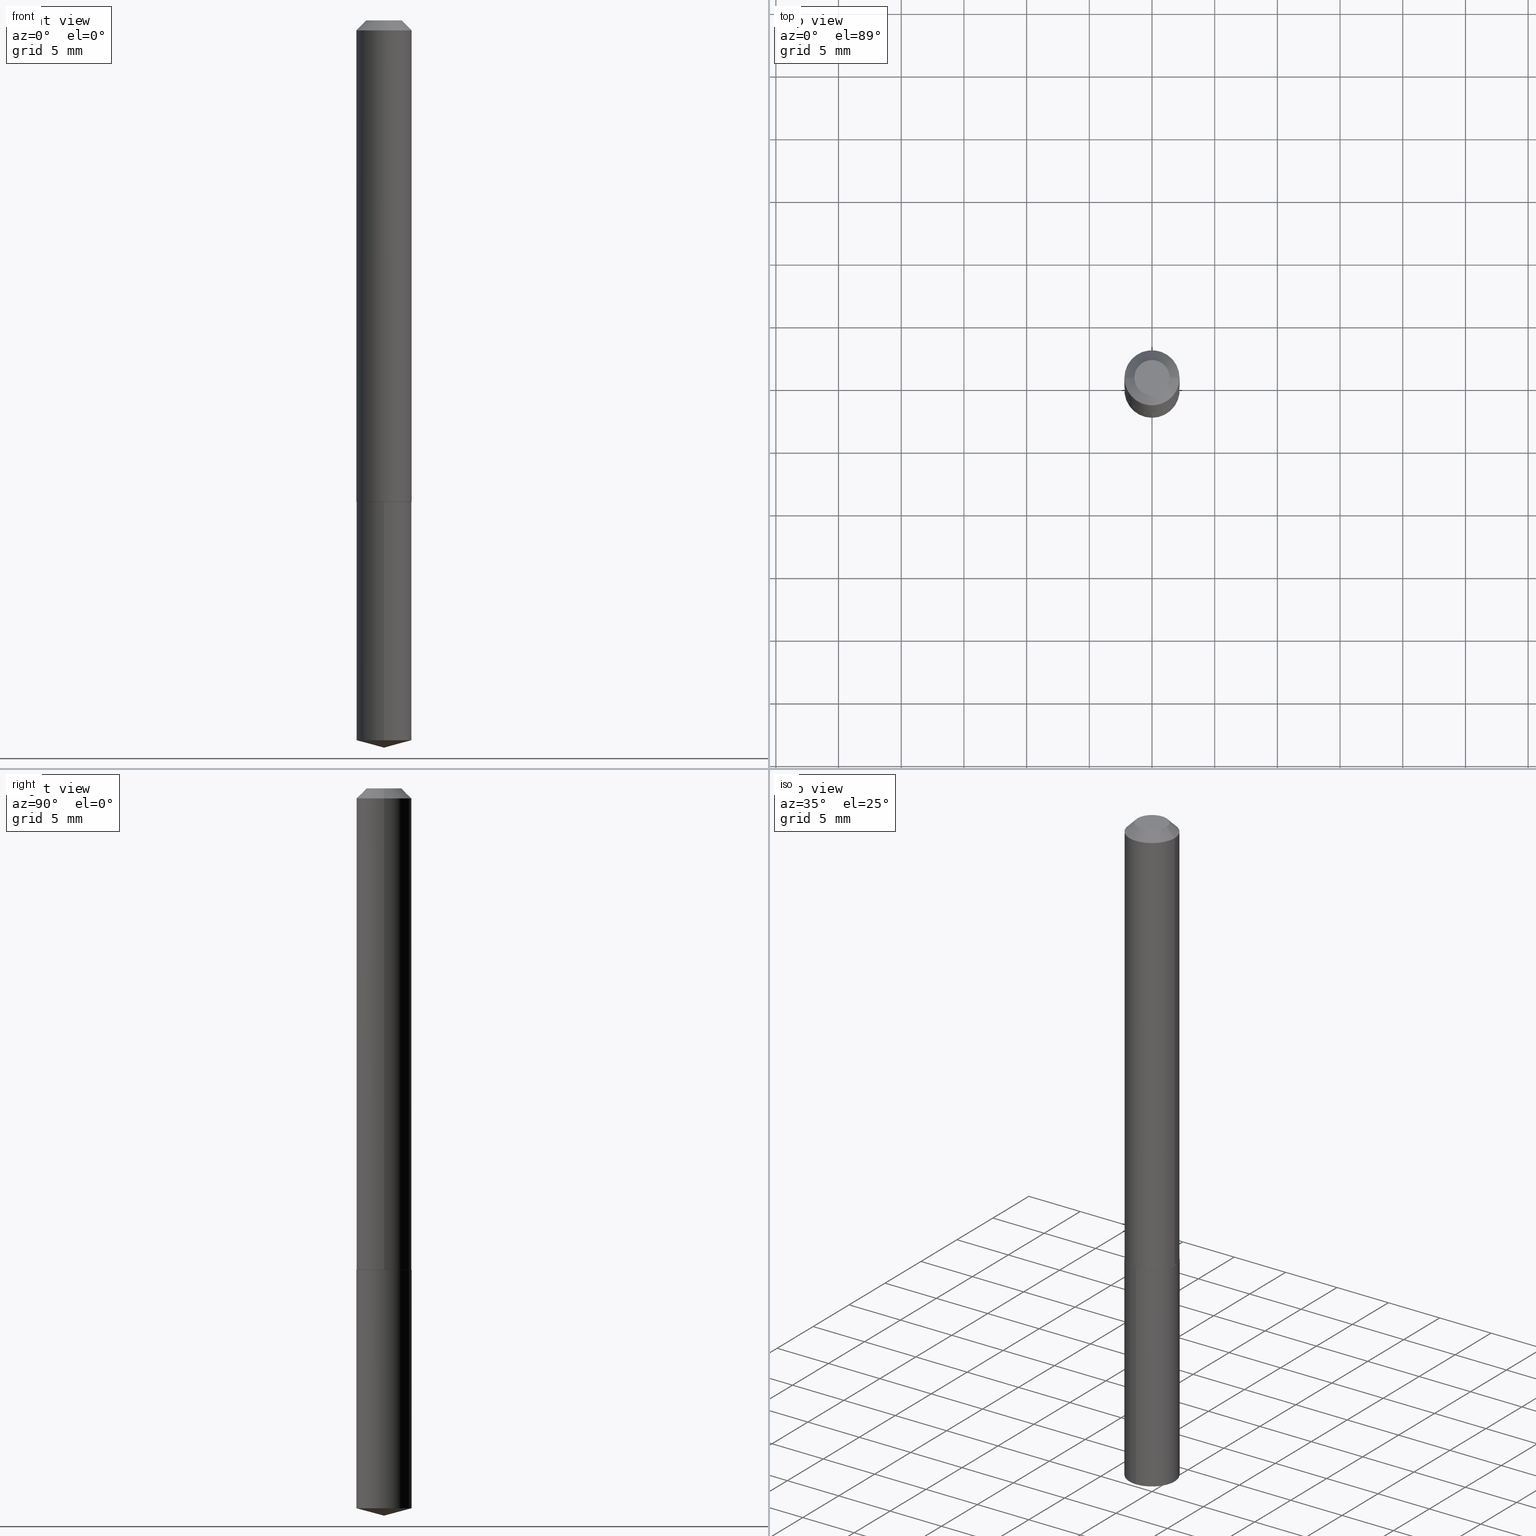
[diagram: canonical four-view strip — front | top / right | iso, engineering-drawing reading convention]
A machine part, canonical four-view strip (front | top / right | iso — engineering-drawing reading convention). The complete STEP part file that produces these views, byte-faithful:
ISO-10303-21;
HEADER;
FILE_DESCRIPTION (( 'STEP AP203' ),
    '1' );
FILE_NAME ('68979.STEP',
    '2024-04-23T14:01:39',
    ( '' ),
    ( '' ),
    'SwSTEP 2.0',
    'SolidWorks 2023',
    '' );
FILE_SCHEMA (( 'CONFIG_CONTROL_DESIGN' ));
ENDSEC;

DATA;
#1 = SECURITY_CLASSIFICATION_LEVEL ( 'unclassified' ) ;
#2 = CARTESIAN_POINT ( 'NONE',  ( 0.08659999999999998255, -7.032279184458636221E-16, -0.03125000000000021511 ) ) ;
#3 = COORDINATED_UNIVERSAL_TIME_OFFSET ( 5, 0, .BEHIND. ) ;
#4 = EDGE_CURVE ( 'NONE', #199, #148, #298, .T. ) ;
#5 = CONICAL_SURFACE ( 'NONE', #224, 0.08659999999999998255, 0.7853981633974449483 ) ;
#6 = CARTESIAN_POINT ( 'NONE',  ( 0.08610000000000034293, -5.879654574611857522E-15, -1.511800000000000033 ) ) ;
#7 = ORIENTED_EDGE ( 'NONE', *, *, #170, .T. ) ;
#8 = CARTESIAN_POINT ( 'NONE',  ( -6.047245678875748166E-16, -0.08660000000000783738, -2.260295599935465027 ) ) ;
#9 = AXIS2_PLACEMENT_3D ( 'NONE', #228, #24, #145 ) ;
#10 = FACE_OUTER_BOUND ( 'NONE', #85, .T. ) ;
#11 = AXIS2_PLACEMENT_3D ( 'NONE', #312, #340, #140 ) ;
#12 = MANIFOLD_SOLID_BREP ( 'Body-Move/Copy2[2]', #326 ) ;
#13 = DIRECTION ( 'NONE',  ( -2.438088387897960049E-29, 3.491481338843145188E-15, 1.000000000000000000 ) ) ;
#14 = DIRECTION ( 'NONE',  ( 6.863315791527699781E-15, 0.9659258262890704216, 0.2588190451025130789 ) ) ;
#15 = ADVANCED_FACE ( 'NONE', ( #217 ), #32, .F. ) ;
#16 = APPROVAL_DATE_TIME ( #257, #154 ) ;
#17 = CLOSED_SHELL ( 'NONE', ( #121, #102, #342, #181, #350 ) ) ;
#18 =( LENGTH_UNIT ( ) NAMED_UNIT ( * ) SI_UNIT ( $, .METRE. ) );
#19 = CALENDAR_DATE ( 2024, 23, 4 ) ;
#20 = EDGE_CURVE ( 'NONE', #95, #233, #387, .T. ) ;
#21 = VERTEX_POINT ( 'NONE', #34 ) ;
#22 = VECTOR ( 'NONE', #94, 39.37007874015748143 ) ;
#23 = CC_DESIGN_PERSON_AND_ORGANIZATION_ASSIGNMENT ( #105, #380, ( #139 ) ) ;
#24 = DIRECTION ( 'NONE',  ( 0.000000000000000000, 0.000000000000000000, 1.000000000000000000 ) ) ;
#25 = DIMENSIONAL_EXPONENTS ( 1.000000000000000000, 0.000000000000000000, 0.000000000000000000, 0.000000000000000000, 0.000000000000000000, 0.000000000000000000, 0.000000000000000000 ) ;
#26 = VERTEX_POINT ( 'NONE', #156 ) ;
#27 = LINE ( 'NONE', #362, #22 ) ;
#28 = VECTOR ( 'NONE', #221, 39.37007874015748143 ) ;
#29 = FACE_OUTER_BOUND ( 'NONE', #267, .T. ) ;
#30 = APPROVAL ( #358, 'UNSPECIFIED' ) ;
#31 = CALENDAR_DATE ( 2024, 23, 4 ) ;
#32 = PLANE ( 'NONE',  #117 ) ;
#33 = ADVANCED_FACE ( 'NONE', ( #360 ), #359, .T. ) ;
#34 = CARTESIAN_POINT ( 'NONE',  ( 6.153300091683016600E-16, 0.08659999999999204445, -2.260295599935465471 ) ) ;
#35 = AXIS2_PLACEMENT_3D ( 'NONE', #284, #343, #74 ) ;
#36 = CARTESIAN_POINT ( 'NONE',  ( -6.047245678875935520E-16, -0.08660000000000526998, -1.511799999999999811 ) ) ;
#37 = CARTESIAN_POINT ( 'NONE',  ( -6.047245678875935520E-16, -0.08660000000000526998, -1.511799999999999811 ) ) ;
#38 = FACE_OUTER_BOUND ( 'NONE', #141, .T. ) ;
#39 = CC_DESIGN_APPROVAL ( #30, ( #109 ) ) ;
#40 = LOCAL_TIME ( 10, 1, 39.00000000000000000, #300 ) ;
#41 = DIRECTION ( 'NONE',  ( -2.445468806185136597E-29, 3.491481338843145583E-15, 1.000000000000000000 ) ) ;
#42 = LINE ( 'NONE', #167, #164 ) ;
#43 = EDGE_CURVE ( 'NONE', #26, #148, #256, .T. ) ;
#44 = DIRECTION ( 'NONE',  ( -2.445402356682457079E-29, 3.491576498313053365E-15, 1.000000000000000000 ) ) ;
#45 = AXIS2_PLACEMENT_3D ( 'NONE', #162, #194, #67 ) ;
#46 = DIRECTION ( 'NONE',  ( -2.445402356682457079E-29, 3.491576498313053365E-15, 1.000000000000000000 ) ) ;
#47 = ORIENTED_EDGE ( 'NONE', *, *, #133, .F. ) ;
#48 = EDGE_CURVE ( 'NONE', #95, #59, #27, .T. ) ;
#49 = ORIENTED_EDGE ( 'NONE', *, *, #369, .T. ) ;
#50 = APPROVAL_ROLE ( '' ) ;
#51 = ORIENTED_EDGE ( 'NONE', *, *, #289, .T. ) ;
#52 = CC_DESIGN_DATE_AND_TIME_ASSIGNMENT ( #290, #147, ( #109 ) ) ;
#53 = CARTESIAN_POINT ( 'NONE',  ( -0.08659999999999998255, 4.956157760487816265E-16, -0.03125000000000021511 ) ) ;
#54 = VERTEX_POINT ( 'NONE', #353 ) ;
#55 = CIRCLE ( 'NONE', #277, 0.08610000000000034293 ) ;
#56 = CALENDAR_DATE ( 2024, 23, 4 ) ;
#57 = ORIENTED_EDGE ( 'NONE', *, *, #335, .F. ) ;
#58 = EDGE_CURVE ( 'NONE', #199, #209, #241, .T. ) ;
#59 = VERTEX_POINT ( 'NONE', #120 ) ;
#60 = DIRECTION ( 'NONE',  ( 1.000000000000000000, -6.982962677686268288E-15, 0.000000000000000000 ) ) ;
#61 = CIRCLE ( 'NONE', #202, 0.08659999999999998255 ) ;
#62 = DIRECTION ( 'NONE',  ( 1.000000000000000000, -6.982962677686265133E-15, 0.000000000000000000 ) ) ;
#63 = ADVANCED_FACE ( 'NONE', ( #188 ), #5, .T. ) ;
#64 = DIRECTION ( 'NONE',  ( -2.445468806185136597E-29, 3.491481338843145583E-15, 1.000000000000000000 ) ) ;
#65 = DIRECTION ( 'NONE',  ( -2.445402356682457079E-29, 3.491576498313053365E-15, 1.000000000000000000 ) ) ;
#66 = CARTESIAN_POINT ( 'NONE',  ( -0.08660000000000017684, -4.661345738225397323E-15, -1.511300000000000088 ) ) ;
#67 = DIRECTION ( 'NONE',  ( -6.982962677686265922E-15, -1.000000000000000000, 3.154558884138872662E-15 ) ) ;
#68 = CYLINDRICAL_SURFACE ( 'NONE', #192, 0.08660000000000007969 ) ;
#69 = LOCAL_TIME ( 10, 1, 39.00000000000000000, #3 ) ;
#70 = DIRECTION ( 'NONE',  ( -2.445468806185136597E-29, 3.491481338843145583E-15, 1.000000000000000000 ) ) ;
#71 = AXIS2_PLACEMENT_3D ( 'NONE', #329, #64, #389 ) ;
#72 = CARTESIAN_POINT ( 'NONE',  ( -0.05534999999999998949, 4.410613801293581608E-16, 2.388061258308374895E-19 ) ) ;
#73 = PRODUCT ( '68979', '68979', '', ( #288 ) ) ;
#74 = DIRECTION ( 'NONE',  ( -6.982962677686265922E-15, -1.000000000000000000, 3.154558884138872662E-15 ) ) ;
#75 = ORIENTED_EDGE ( 'NONE', *, *, #151, .T. ) ;
#76 = AXIS2_PLACEMENT_3D ( 'NONE', #129, #41, #222 ) ;
#77 =( CONVERSION_BASED_UNIT ( 'INCH', #108 ) LENGTH_UNIT ( ) NAMED_UNIT ( #25 ) );
#78 = ADVANCED_BREP_SHAPE_REPRESENTATION ( '68979', ( #261, #12, #9 ), #88 ) ;
#79 = ORIENTED_EDGE ( 'NONE', *, *, #279, .F. ) ;
#80 = CIRCLE ( 'NONE', #35, 0.08659999999999998255 ) ;
#81 = CC_DESIGN_PERSON_AND_ORGANIZATION_ASSIGNMENT ( #236, #238, ( #109 ) ) ;
#82 = DIRECTION ( 'NONE',  ( 6.982962677686265922E-15, 1.000000000000000000, -3.491576498313053365E-15 ) ) ;
#83 = ORIENTED_EDGE ( 'NONE', *, *, #305, .T. ) ;
#84 = DIRECTION ( 'NONE',  ( -6.745023994389845444E-15, -0.9659258262890685343, 0.2588190451025198513 ) ) ;
#85 = EDGE_LOOP ( 'NONE', ( #205, #316, #110, #318 ) ) ;
#86 = FACE_OUTER_BOUND ( 'NONE', #144, .T. ) ;
#87 = LOCAL_TIME ( 10, 1, 39.00000000000000000, #296 ) ;
#88 =( GEOMETRIC_REPRESENTATION_CONTEXT ( 3 ) GLOBAL_UNCERTAINTY_ASSIGNED_CONTEXT ( ( #134 ) ) GLOBAL_UNIT_ASSIGNED_CONTEXT ( ( #77, #175, #317 ) ) REPRESENTATION_CONTEXT ( 'NONE', 'WORKASPACE' ) );
#89 = CARTESIAN_POINT ( 'NONE',  ( 3.697059741190689517E-29, -5.278421488063067239E-15, -1.511800000000000033 ) ) ;
#90 = SHAPE_DEFINITION_REPRESENTATION ( #366, #78 ) ;
#91 = CARTESIAN_POINT ( 'NONE',  ( 7.642090019328603538E-31, -1.091087918388490390E-16, -0.03125000000000021511 ) ) ;
#92 = EDGE_CURVE ( 'NONE', #287, #26, #271, .T. ) ;
#93 = CARTESIAN_POINT ( 'NONE',  ( 0.08660000000000007969, -6.047245678876313188E-16, 4.222769087839284057E-30 ) ) ;
#94 = DIRECTION ( 'NONE',  ( 0.7071067811864992780, -2.468850131081751401E-15, 0.7071067811865957564 ) ) ;
#95 = VERTEX_POINT ( 'NONE', #6 ) ;
#96 = CARTESIAN_POINT ( 'NONE',  ( -0.08660000000000017684, -4.661345738225397323E-15, -1.511300000000000088 ) ) ;
#97 = EDGE_CURVE ( 'NONE', #233, #95, #55, .T. ) ;
#98 = CIRCLE ( 'NONE', #169, 0.08660000000000017684 ) ;
#99 = DIRECTION ( 'NONE',  ( -2.445468806185136597E-29, 3.491481338843145583E-15, 1.000000000000000000 ) ) ;
#100 = FACE_OUTER_BOUND ( 'NONE', #385, .T. ) ;
#101 = PERSON ( 'UNSPECIFIED', 'UNSPECIFIED', 'UNSPECIFIED', ('UNSPECIFIED'), ('UNSPECIFIED'), ('UNSPECIFIED') ) ;
#102 = ADVANCED_FACE ( 'NONE', ( #29 ), #107, .T. ) ;
#103 = DIRECTION ( 'NONE',  ( 2.445468806185136597E-29, -3.491481338843145583E-15, -1.000000000000000000 ) ) ;
#104 = LINE ( 'NONE', #334, #283 ) ;
#105 = PERSON_AND_ORGANIZATION ( #101, #118 ) ;
#106 = VERTEX_POINT ( 'NONE', #36 ) ;
#107 = CONICAL_SURFACE ( 'NONE', #365, 146.9311341562576274, 1.308996938995751647 ) ;
#108 = LENGTH_MEASURE_WITH_UNIT ( LENGTH_MEASURE( 0.02539999999999999897 ), #18 );
#109 = SECURITY_CLASSIFICATION ( '', '', #1 ) ;
#110 = ORIENTED_EDGE ( 'NONE', *, *, #177, .T. ) ;
#111 = CIRCLE ( 'NONE', #264, 0.08659999999999998255 ) ;
#112 = DIRECTION ( 'NONE',  ( 2.445402356682456799E-29, -3.491576498313053365E-15, -1.000000000000000000 ) ) ;
#113 = ORIENTED_EDGE ( 'NONE', *, *, #92, .T. ) ;
#114 = APPLICATION_PROTOCOL_DEFINITION ( 'international standard', 'config_control_design', 1994, #189 ) ;
#115 = ORIENTED_EDGE ( 'NONE', *, *, #151, .F. ) ;
#116 = ORIENTED_EDGE ( 'NONE', *, *, #204, .F. ) ;
#117 = AXIS2_PLACEMENT_3D ( 'NONE', #215, #240, #239 ) ;
#118 = ORGANIZATION ( 'UNSPECIFIED', 'UNSPECIFIED', '' ) ;
#119 = PERSON_AND_ORGANIZATION ( #101, #118 ) ;
#120 = CARTESIAN_POINT ( 'NONE',  ( 0.08660000000000017684, -5.881400315281277448E-15, -1.511300000000000088 ) ) ;
#121 = ADVANCED_FACE ( 'NONE', ( #153 ), #272, .T. ) ;
#122 = DIRECTION ( 'NONE',  ( -2.445468806185136597E-29, 3.491481338843145583E-15, 1.000000000000000000 ) ) ;
#123 = CALENDAR_DATE ( 2024, 23, 4 ) ;
#124 = ORIENTED_EDGE ( 'NONE', *, *, #204, .T. ) ;
#125 = VECTOR ( 'NONE', #323, 39.37007874015748143 ) ;
#126 = PERSON_AND_ORGANIZATION_ROLE ( 'creator' ) ;
#127 = CARTESIAN_POINT ( 'NONE',  ( 3.697059741190689517E-29, -5.278421488063067239E-15, -1.511800000000000033 ) ) ;
#128 = DIRECTION ( 'NONE',  ( -2.445468806185136597E-29, 3.491481338843145583E-15, 1.000000000000000000 ) ) ;
#129 = CARTESIAN_POINT ( 'NONE',  ( 3.695837006787596715E-29, -5.276675747393645735E-15, -1.511300000000000088 ) ) ;
#130 = CIRCLE ( 'NONE', #374, 0.08659999999999998255 ) ;
#131 = APPROVAL_PERSON_ORGANIZATION ( #142, #154, #50 ) ;
#132 = CARTESIAN_POINT ( 'NONE',  ( -0.08610000000000034293, -4.663994965399507735E-15, -1.511800000000000033 ) ) ;
#133 = EDGE_CURVE ( 'NONE', #59, #148, #357, .T. ) ;
#134 = UNCERTAINTY_MEASURE_WITH_UNIT (LENGTH_MEASURE( 1.000000000000000082E-05 ), #77, 'distance_accuracy_value', 'NONE');
#135 = DIRECTION ( 'NONE',  ( 1.000000000000000000, -6.982962677686265922E-15, 4.876176775795935793E-29 ) ) ;
#136 = DIRECTION ( 'NONE',  ( 1.000000000000000000, -6.982962677686265133E-15, 0.000000000000000000 ) ) ;
#137 = CIRCLE ( 'NONE', #200, 0.08660000000000017684 ) ;
#138 = ORIENTED_EDGE ( 'NONE', *, *, #331, .T. ) ;
#139 = PRODUCT_DEFINITION ( 'UNKNOWN', '', #295, #187 ) ;
#140 = DIRECTION ( 'NONE',  ( -6.982962677686265922E-15, -1.000000000000000000, 3.154558884138872662E-15 ) ) ;
#141 = EDGE_LOOP ( 'NONE', ( #315, #113, #299, #47 ) ) ;
#142 = PERSON_AND_ORGANIZATION ( #101, #118 ) ;
#143 = AXIS2_PLACEMENT_3D ( 'NONE', #293, #122, #234 ) ;
#144 = EDGE_LOOP ( 'NONE', ( #207, #303 ) ) ;
#145 = DIRECTION ( 'NONE',  ( 1.000000000000000000, 0.000000000000000000, 0.000000000000000000 ) ) ;
#146 = ORIENTED_EDGE ( 'NONE', *, *, #48, .F. ) ;
#147 = DATE_TIME_ROLE ( 'classification_date' ) ;
#148 = VERTEX_POINT ( 'NONE', #307 ) ;
#149 = CIRCLE ( 'NONE', #333, 0.05534999999999998949 ) ;
#150 = VERTEX_POINT ( 'NONE', #197 ) ;
#151 = EDGE_CURVE ( 'NONE', #185, #106, #195, .T. ) ;
#152 = AXIS2_PLACEMENT_3D ( 'NONE', #244, #70, #161 ) ;
#153 = FACE_OUTER_BOUND ( 'NONE', #381, .T. ) ;
#154 = APPROVAL ( #250, 'UNSPECIFIED' ) ;
#155 = DATE_AND_TIME ( #31, #40 ) ;
#156 = CARTESIAN_POINT ( 'NONE',  ( -0.08659999999999998255, -2.077562260447999006E-15, -0.03125000000000021511 ) ) ;
#157 = PERSON_AND_ORGANIZATION ( #101, #118 ) ;
#158 = DIRECTION ( 'NONE',  ( 2.445468806185136597E-29, -3.491481338843145583E-15, -1.000000000000000000 ) ) ;
#159 = ADVANCED_FACE ( 'NONE', ( #100 ), #219, .T. ) ;
#160 = CARTESIAN_POINT ( 'NONE',  ( -0.08660000000000007969, 6.153300091682473272E-16, -4.259797788160751610E-30 ) ) ;
#161 = DIRECTION ( 'NONE',  ( 1.000000000000000000, -6.982962677686267499E-15, 4.876176775795935793E-29 ) ) ;
#162 = CARTESIAN_POINT ( 'NONE',  ( 3.697059741190689517E-29, -5.278421488063067239E-15, -1.511800000000000033 ) ) ;
#163 = EDGE_CURVE ( 'NONE', #287, #59, #137, .T. ) ;
#164 = VECTOR ( 'NONE', #14, 39.37007874015748854 ) ;
#165 = VECTOR ( 'NONE', #213, 39.37007874015748143 ) ;
#166 = FACE_OUTER_BOUND ( 'NONE', #211, .T. ) ;
#167 = CARTESIAN_POINT ( 'NONE',  ( 5.584278960003131881E-29, -7.972727209724644347E-15, -2.283500000000000085 ) ) ;
#168 = DIRECTION ( 'NONE',  ( -6.982962677686265922E-15, -1.000000000000000000, 3.154558884138872662E-15 ) ) ;
#169 = AXIS2_PLACEMENT_3D ( 'NONE', #246, #248, #136 ) ;
#170 = EDGE_CURVE ( 'NONE', #233, #287, #339, .T. ) ;
#171 = DIRECTION ( 'NONE',  ( -6.982962677686266711E-15, -1.000000000000000000, 3.510303681827577719E-15 ) ) ;
#172 = ORIENTED_EDGE ( 'NONE', *, *, #309, .F. ) ;
#173 = COORDINATED_UNIVERSAL_TIME_OFFSET ( 5, 0, .BEHIND. ) ;
#174 = ORIENTED_EDGE ( 'NONE', *, *, #92, .F. ) ;
#175 =( NAMED_UNIT ( * ) PLANE_ANGLE_UNIT ( ) SI_UNIT ( $, .RADIAN. ) );
#176 = ORIENTED_EDGE ( 'NONE', *, *, #289, .F. ) ;
#177 = EDGE_CURVE ( 'NONE', #148, #26, #111, .T. ) ;
#178 = EDGE_LOOP ( 'NONE', ( #301, #176, #83, #351 ) ) ;
#179 = EDGE_LOOP ( 'NONE', ( #341, #7, #254, #146 ) ) ;
#180 = PERSON_AND_ORGANIZATION ( #101, #118 ) ;
#181 = ADVANCED_FACE ( 'NONE', ( #247 ), #363, .T. ) ;
#182 = ORIENTED_EDGE ( 'NONE', *, *, #97, .F. ) ;
#183 = DIRECTION ( 'NONE',  ( -6.982962677686266711E-15, -1.000000000000000000, 3.510303681827577719E-15 ) ) ;
#184 = AXIS2_PLACEMENT_3D ( 'NONE', #89, #268, #390 ) ;
#185 = VERTEX_POINT ( 'NONE', #8 ) ;
#186 = APPROVAL_ROLE ( '' ) ;
#187 = DESIGN_CONTEXT ( 'detailed design', #189, 'design' ) ;
#188 = FACE_OUTER_BOUND ( 'NONE', #178, .T. ) ;
#189 = APPLICATION_CONTEXT ( 'configuration controlled 3d designs of mechanical parts and assemblies' ) ;
#190 = ADVANCED_FACE ( 'NONE', ( #373 ), #352, .T. ) ;
#191 = ORIENTED_EDGE ( 'NONE', *, *, #163, .F. ) ;
#192 = AXIS2_PLACEMENT_3D ( 'NONE', #198, #99, #275 ) ;
#193 = DIRECTION ( 'NONE',  ( 1.000000000000000000, -6.982962677686266711E-15, 4.876151470398592516E-29 ) ) ;
#194 = DIRECTION ( 'NONE',  ( -2.445402356682457079E-29, 3.491576498313053365E-15, 1.000000000000000000 ) ) ;
#195 = LINE ( 'NONE', #37, #304 ) ;
#196 = AXIS2_PLACEMENT_3D ( 'NONE', #328, #270, #62 ) ;
#197 = CARTESIAN_POINT ( 'NONE',  ( 6.153300091683017586E-16, 0.08659999999999469511, -1.511800000000000255 ) ) ;
#198 = CARTESIAN_POINT ( 'NONE',  ( 0.000000000000000000, 0.000000000000000000, 0.000000000000000000 ) ) ;
#199 = VERTEX_POINT ( 'NONE', #273 ) ;
#200 = AXIS2_PLACEMENT_3D ( 'NONE', #368, #243, #282 ) ;
#201 = CC_DESIGN_PERSON_AND_ORGANIZATION_ASSIGNMENT ( #180, #126, ( #295 ) ) ;
#202 = AXIS2_PLACEMENT_3D ( 'NONE', #225, #44, #168 ) ;
#203 = ORIENTED_EDGE ( 'NONE', *, *, #133, .T. ) ;
#204 = EDGE_CURVE ( 'NONE', #21, #150, #104, .T. ) ;
#205 = ORIENTED_EDGE ( 'NONE', *, *, #58, .F. ) ;
#206 = CARTESIAN_POINT ( 'NONE',  ( 5.584076281484391269E-29, -7.973014933897857638E-15, -2.283500000000000085 ) ) ;
#207 = ORIENTED_EDGE ( 'NONE', *, *, #335, .T. ) ;
#208 = LINE ( 'NONE', #206, #345 ) ;
#209 = VERTEX_POINT ( 'NONE', #72 ) ;
#210 = APPROVAL_DATE_TIME ( #155, #30 ) ;
#211 = EDGE_LOOP ( 'NONE', ( #383, #182 ) ) ;
#212 = CC_DESIGN_PERSON_AND_ORGANIZATION_ASSIGNMENT ( #347, #376, ( #73 ) ) ;
#213 = DIRECTION ( 'NONE',  ( 0.7071067811865451302, -7.319954787623248157E-15, -0.7071067811865499042 ) ) ;
#214 = CC_DESIGN_APPROVAL ( #255, ( #295 ) ) ;
#215 = CARTESIAN_POINT ( 'NONE',  ( -2.919964657261559142E-48, 4.168935659749500181E-34, 1.194030629168655274E-19 ) ) ;
#216 = APPROVAL_DATE_TIME ( #265, #255 ) ;
#217 = FACE_OUTER_BOUND ( 'NONE', #378, .T. ) ;
#218 = DIRECTION ( 'NONE',  ( -2.445468806185136597E-29, 3.491481338843145583E-15, 1.000000000000000000 ) ) ;
#219 = CYLINDRICAL_SURFACE ( 'NONE', #152, 0.08660000000000007969 ) ;
#220 = CC_DESIGN_APPROVAL ( #154, ( #139 ) ) ;
#221 = DIRECTION ( 'NONE',  ( -2.445468806185136877E-29, 3.491481338843145188E-15, 1.000000000000000000 ) ) ;
#222 = DIRECTION ( 'NONE',  ( 1.000000000000000000, -6.982962677686265133E-15, 0.000000000000000000 ) ) ;
#223 = DIRECTION ( 'NONE',  ( -1.000000000000000000, 6.982962677686267499E-15, 0.000000000000000000 ) ) ;
#224 = AXIS2_PLACEMENT_3D ( 'NONE', #91, #158, #237 ) ;
#225 = CARTESIAN_POINT ( 'NONE',  ( 5.527432645239326200E-29, -7.891851133888467011E-15, -2.260295599935465471 ) ) ;
#226 = ORIENTED_EDGE ( 'NONE', *, *, #43, .F. ) ;
#227 = AXIS2_PLACEMENT_3D ( 'NONE', #375, #319, #171 ) ;
#228 = CARTESIAN_POINT ( 'NONE',  ( 0.000000000000000000, 0.000000000000000000, 0.000000000000000000 ) ) ;
#229 = ORIENTED_EDGE ( 'NONE', *, *, #279, .T. ) ;
#230 = PLANE ( 'NONE',  #386 ) ;
#231 = EDGE_LOOP ( 'NONE', ( #377, #49, #263 ) ) ;
#232 = DIRECTION ( 'NONE',  ( -6.982962677686265922E-15, -1.000000000000000000, 3.154558884138872662E-15 ) ) ;
#233 = VERTEX_POINT ( 'NONE', #132 ) ;
#234 = DIRECTION ( 'NONE',  ( 1.000000000000000000, -6.982962677686268288E-15, 0.000000000000000000 ) ) ;
#235 = ADVANCED_FACE ( 'NONE', ( #38 ), #68, .T. ) ;
#236 = PERSON_AND_ORGANIZATION ( #101, #118 ) ;
#237 = DIRECTION ( 'NONE',  ( -1.000000000000000000, 6.982962677686267499E-15, 0.000000000000000000 ) ) ;
#238 = PERSON_AND_ORGANIZATION_ROLE ( 'classification_officer' ) ;
#239 = DIRECTION ( 'NONE',  ( -1.000000000000000000, 6.982962677686265922E-15, -4.876176775795935793E-29 ) ) ;
#240 = DIRECTION ( 'NONE',  ( 2.438088387897960049E-29, -3.491481338843145188E-15, -1.000000000000000000 ) ) ;
#241 = CIRCLE ( 'NONE', #71, 0.05534999999999998949 ) ;
#242 = CARTESIAN_POINT ( 'NONE',  ( 7.642090019328603538E-31, -1.091087918388490390E-16, -0.03125000000000021511 ) ) ;
#243 = DIRECTION ( 'NONE',  ( -2.445468806185136597E-29, 3.491481338843145583E-15, 1.000000000000000000 ) ) ;
#244 = CARTESIAN_POINT ( 'NONE',  ( 0.000000000000000000, 0.000000000000000000, 0.000000000000000000 ) ) ;
#245 = PRODUCT_RELATED_PRODUCT_CATEGORY ( 'detail', '', ( #73 ) ) ;
#246 = CARTESIAN_POINT ( 'NONE',  ( 3.695837006787596715E-29, -5.276675747393645735E-15, -1.511300000000000088 ) ) ;
#247 = FACE_OUTER_BOUND ( 'NONE', #251, .T. ) ;
#248 = DIRECTION ( 'NONE',  ( -2.445468806185136597E-29, 3.491481338843145583E-15, 1.000000000000000000 ) ) ;
#249 = CONICAL_SURFACE ( 'NONE', #227, 146.9311341562576274, 1.308996938995751647 ) ;
#250 = APPROVAL_STATUS ( 'not_yet_approved' ) ;
#251 = EDGE_LOOP ( 'NONE', ( #116, #138, #75, #172 ) ) ;
#252 = ADVANCED_FACE ( 'NONE', ( #166 ), #311, .F. ) ;
#253 = DIRECTION ( 'NONE',  ( -0.7071067811865451302, 2.468850131082231817E-15, -0.7071067811865499042 ) ) ;
#254 = ORIENTED_EDGE ( 'NONE', *, *, #274, .F. ) ;
#255 = APPROVAL ( #322, 'UNSPECIFIED' ) ;
#256 = CIRCLE ( 'NONE', #338, 0.08659999999999998255 ) ;
#257 = DATE_AND_TIME ( #56, #346 ) ;
#258 = ORIENTED_EDGE ( 'NONE', *, *, #170, .F. ) ;
#259 = APPLICATION_PROTOCOL_DEFINITION ( 'international standard', 'config_control_design', 1994, #281 ) ;
#260 = ORIENTED_EDGE ( 'NONE', *, *, #48, .T. ) ;
#261 = MANIFOLD_SOLID_BREP ( 'Body-Move/Copy2[1]', #17 ) ;
#262 = ADVANCED_FACE ( 'NONE', ( #10 ), #297, .T. ) ;
#263 = ORIENTED_EDGE ( 'NONE', *, *, #331, .F. ) ;
#264 = AXIS2_PLACEMENT_3D ( 'NONE', #308, #280, #310 ) ;
#265 = DATE_AND_TIME ( #123, #69 ) ;
#266 = AXIS2_PLACEMENT_3D ( 'NONE', #278, #13, #135 ) ;
#267 = EDGE_LOOP ( 'NONE', ( #313, #285, #79 ) ) ;
#268 = DIRECTION ( 'NONE',  ( -2.445402356682457079E-29, 3.491576498313053365E-15, 1.000000000000000000 ) ) ;
#269 = EDGE_CURVE ( 'NONE', #54, #21, #42, .T. ) ;
#270 = DIRECTION ( 'NONE',  ( -2.445468806185136597E-29, 3.491481338843145583E-15, 1.000000000000000000 ) ) ;
#271 = LINE ( 'NONE', #160, #125 ) ;
#272 = CYLINDRICAL_SURFACE ( 'NONE', #184, 0.08659999999999998255 ) ;
#273 = CARTESIAN_POINT ( 'NONE',  ( 0.05534999999999998949, -5.414782413112588911E-16, 2.388061258369751875E-19 ) ) ;
#274 = EDGE_CURVE ( 'NONE', #59, #287, #98, .T. ) ;
#275 = DIRECTION ( 'NONE',  ( 1.000000000000000000, -6.982962677686267499E-15, 4.876176775795935793E-29 ) ) ;
#276 = LOCAL_TIME ( 10, 1, 39.00000000000000000, #173 ) ;
#277 = AXIS2_PLACEMENT_3D ( 'NONE', #127, #218, #60 ) ;
#278 = CARTESIAN_POINT ( 'NONE',  ( 3.697059741190689517E-29, -5.278421488063067239E-15, -1.511800000000000033 ) ) ;
#279 = EDGE_CURVE ( 'NONE', #185, #21, #61, .T. ) ;
#280 = DIRECTION ( 'NONE',  ( -2.445468806185136597E-29, 3.491481338843145583E-15, 1.000000000000000000 ) ) ;
#281 = APPLICATION_CONTEXT ( 'configuration controlled 3d designs of mechanical parts and assemblies' ) ;
#282 = DIRECTION ( 'NONE',  ( 1.000000000000000000, -6.982962677686265133E-15, 0.000000000000000000 ) ) ;
#283 = VECTOR ( 'NONE', #332, 39.37007874015748143 ) ;
#284 = CARTESIAN_POINT ( 'NONE',  ( 3.697059741190689517E-29, -5.278421488063067239E-15, -1.511800000000000033 ) ) ;
#285 = ORIENTED_EDGE ( 'NONE', *, *, #269, .T. ) ;
#286 = COORDINATED_UNIVERSAL_TIME_OFFSET ( 5, 0, .BEHIND. ) ;
#287 = VERTEX_POINT ( 'NONE', #66 ) ;
#288 = MECHANICAL_CONTEXT ( 'NONE', #281, 'mechanical' ) ;
#289 = EDGE_CURVE ( 'NONE', #209, #199, #149, .T. ) ;
#290 = DATE_AND_TIME ( #354, #87 ) ;
#291 = EDGE_LOOP ( 'NONE', ( #258, #348, #260, #191 ) ) ;
#292 = PERSON_AND_ORGANIZATION_ROLE ( 'design_supplier' ) ;
#293 = CARTESIAN_POINT ( 'NONE',  ( 3.697059741190689517E-29, -5.278421488063067239E-15, -1.511800000000000033 ) ) ;
#294 = VECTOR ( 'NONE', #253, 39.37007874015748143 ) ;
#295 = PRODUCT_DEFINITION_FORMATION_WITH_SPECIFIED_SOURCE ( 'ANY', '', #73, .NOT_KNOWN. ) ;
#296 = COORDINATED_UNIVERSAL_TIME_OFFSET ( 5, 0, .BEHIND. ) ;
#297 = CONICAL_SURFACE ( 'NONE', #327, 0.08659999999999998255, 0.7853981633974449483 ) ;
#298 = LINE ( 'NONE', #2, #165 ) ;
#299 = ORIENTED_EDGE ( 'NONE', *, *, #177, .F. ) ;
#300 = COORDINATED_UNIVERSAL_TIME_OFFSET ( 5, 0, .BEHIND. ) ;
#301 = ORIENTED_EDGE ( 'NONE', *, *, #4, .F. ) ;
#302 = CC_DESIGN_SECURITY_CLASSIFICATION ( #109, ( #295 ) ) ;
#303 = ORIENTED_EDGE ( 'NONE', *, *, #309, .T. ) ;
#304 = VECTOR ( 'NONE', #337, 39.37007874015748143 ) ;
#305 = EDGE_CURVE ( 'NONE', #209, #26, #370, .T. ) ;
#306 = CARTESIAN_POINT ( 'NONE',  ( -5.839929314523118284E-48, 8.337871319499000362E-34, 2.388061258337310548E-19 ) ) ;
#307 = CARTESIAN_POINT ( 'NONE',  ( 0.08659999999999998255, -7.138333597264797291E-16, -0.03125000000000021511 ) ) ;
#308 = CARTESIAN_POINT ( 'NONE',  ( 7.642090019328603538E-31, -1.091087918388490390E-16, -0.03125000000000021511 ) ) ;
#309 = EDGE_CURVE ( 'NONE', #150, #106, #379, .T. ) ;
#310 = DIRECTION ( 'NONE',  ( 1.000000000000000000, -6.982962677686267499E-15, 0.000000000000000000 ) ) ;
#311 = PLANE ( 'NONE',  #266 ) ;
#312 = CARTESIAN_POINT ( 'NONE',  ( 3.697059741190689517E-29, -5.278421488063067239E-15, -1.511800000000000033 ) ) ;
#313 = ORIENTED_EDGE ( 'NONE', *, *, #369, .F. ) ;
#314 = CARTESIAN_POINT ( 'NONE',  ( 3.697059741190689517E-29, -5.278421488063067239E-15, -1.511800000000000033 ) ) ;
#315 = ORIENTED_EDGE ( 'NONE', *, *, #274, .T. ) ;
#316 = ORIENTED_EDGE ( 'NONE', *, *, #4, .T. ) ;
#317 =( NAMED_UNIT ( * ) SI_UNIT ( $, .STERADIAN. ) SOLID_ANGLE_UNIT ( ) );
#318 = ORIENTED_EDGE ( 'NONE', *, *, #305, .F. ) ;
#319 = DIRECTION ( 'NONE',  ( -2.445402356682457079E-29, 3.491576498313053365E-15, 1.000000000000000000 ) ) ;
#320 = ORIENTED_EDGE ( 'NONE', *, *, #58, .T. ) ;
#321 = DIRECTION ( 'NONE',  ( -2.445468806185136597E-29, 3.491481338843145583E-15, 1.000000000000000000 ) ) ;
#322 = APPROVAL_STATUS ( 'not_yet_approved' ) ;
#323 = DIRECTION ( 'NONE',  ( -2.445468806185136877E-29, 3.491481338843145188E-15, 1.000000000000000000 ) ) ;
#324 = VECTOR ( 'NONE', #336, 39.37007874015748143 ) ;
#325 = APPROVAL_PERSON_ORGANIZATION ( #157, #30, #356 ) ;
#326 = CLOSED_SHELL ( 'NONE', ( #262, #235, #190, #252, #33, #159, #63, #15 ) ) ;
#327 = AXIS2_PLACEMENT_3D ( 'NONE', #372, #103, #223 ) ;
#328 = CARTESIAN_POINT ( 'NONE',  ( 3.695837006787596715E-29, -5.276675747393645735E-15, -1.511300000000000088 ) ) ;
#329 = CARTESIAN_POINT ( 'NONE',  ( -5.839929314523118284E-48, 8.337871319499000362E-34, 2.388061258337310548E-19 ) ) ;
#330 = CARTESIAN_POINT ( 'NONE',  ( -9.069150659411246944E-28, 1.294907705940570051E-13, 37.08657874015747780 ) ) ;
#331 = EDGE_CURVE ( 'NONE', #21, #185, #130, .T. ) ;
#332 = DIRECTION ( 'NONE',  ( -2.445402356682457359E-29, 3.491576498313053365E-15, 1.000000000000000000 ) ) ;
#333 = AXIS2_PLACEMENT_3D ( 'NONE', #306, #128, #193 ) ;
#334 = CARTESIAN_POINT ( 'NONE',  ( 6.153300091682836148E-16, 0.08659999999999470899, -1.511800000000000255 ) ) ;
#335 = EDGE_CURVE ( 'NONE', #106, #150, #80, .T. ) ;
#336 = DIRECTION ( 'NONE',  ( -0.7071067811864992780, 7.493145998870180611E-15, 0.7071067811865957564 ) ) ;
#337 = DIRECTION ( 'NONE',  ( -2.445402356682457359E-29, 3.491576498313053365E-15, 1.000000000000000000 ) ) ;
#338 = AXIS2_PLACEMENT_3D ( 'NONE', #242, #321, #355 ) ;
#339 = LINE ( 'NONE', #96, #324 ) ;
#340 = DIRECTION ( 'NONE',  ( -2.445402356682457079E-29, 3.491576498313053365E-15, 1.000000000000000000 ) ) ;
#341 = ORIENTED_EDGE ( 'NONE', *, *, #20, .T. ) ;
#342 = ADVANCED_FACE ( 'NONE', ( #349 ), #249, .T. ) ;
#343 = DIRECTION ( 'NONE',  ( -2.445402356682457079E-29, 3.491576498313053365E-15, 1.000000000000000000 ) ) ;
#344 = ORIENTED_EDGE ( 'NONE', *, *, #163, .T. ) ;
#345 = VECTOR ( 'NONE', #84, 39.37007874015748143 ) ;
#346 = LOCAL_TIME ( 10, 1, 39.00000000000000000, #286 ) ;
#347 = PERSON_AND_ORGANIZATION ( #101, #118 ) ;
#348 = ORIENTED_EDGE ( 'NONE', *, *, #97, .T. ) ;
#349 = FACE_OUTER_BOUND ( 'NONE', #231, .T. ) ;
#350 = ADVANCED_FACE ( 'NONE', ( #86 ), #230, .F. ) ;
#351 = ORIENTED_EDGE ( 'NONE', *, *, #43, .T. ) ;
#352 = CONICAL_SURFACE ( 'NONE', #76, 0.08660000000000017684, 0.7853981633973801113 ) ;
#353 = CARTESIAN_POINT ( 'NONE',  ( 5.584076281484391269E-29, -7.973014933897857638E-15, -2.283500000000000085 ) ) ;
#354 = CALENDAR_DATE ( 2024, 23, 4 ) ;
#355 = DIRECTION ( 'NONE',  ( 1.000000000000000000, -6.982962677686267499E-15, 0.000000000000000000 ) ) ;
#356 = APPROVAL_ROLE ( '' ) ;
#357 = LINE ( 'NONE', #93, #28 ) ;
#358 = APPROVAL_STATUS ( 'not_yet_approved' ) ;
#359 = CONICAL_SURFACE ( 'NONE', #196, 0.08660000000000017684, 0.7853981633973801113 ) ;
#360 = FACE_OUTER_BOUND ( 'NONE', #291, .T. ) ;
#361 = DATE_TIME_ROLE ( 'creation_date' ) ;
#362 = CARTESIAN_POINT ( 'NONE',  ( 0.08660000000000017684, -5.881400315281277448E-15, -1.511300000000000088 ) ) ;
#363 = CYLINDRICAL_SURFACE ( 'NONE', #45, 0.08659999999999998255 ) ;
#364 = CC_DESIGN_PERSON_AND_ORGANIZATION_ASSIGNMENT ( #119, #292, ( #295 ) ) ;
#365 = AXIS2_PLACEMENT_3D ( 'NONE', #330, #65, #183 ) ;
#366 = PRODUCT_DEFINITION_SHAPE ( 'NONE', 'NONE',  #139 ) ;
#367 = APPROVAL_PERSON_ORGANIZATION ( #384, #255, #186 ) ;
#368 = CARTESIAN_POINT ( 'NONE',  ( 3.695837006787596715E-29, -5.276675747393645735E-15, -1.511300000000000088 ) ) ;
#369 = EDGE_CURVE ( 'NONE', #54, #185, #208, .T. ) ;
#370 = LINE ( 'NONE', #53, #294 ) ;
#371 = CC_DESIGN_DATE_AND_TIME_ASSIGNMENT ( #388, #361, ( #139 ) ) ;
#372 = CARTESIAN_POINT ( 'NONE',  ( 7.642090019328603538E-31, -1.091087918388490390E-16, -0.03125000000000021511 ) ) ;
#373 = FACE_OUTER_BOUND ( 'NONE', #179, .T. ) ;
#374 = AXIS2_PLACEMENT_3D ( 'NONE', #382, #46, #232 ) ;
#375 = CARTESIAN_POINT ( 'NONE',  ( -9.069150659411246944E-28, 1.294907705940570051E-13, 37.08657874015747780 ) ) ;
#376 = PERSON_AND_ORGANIZATION_ROLE ( 'design_owner' ) ;
#377 = ORIENTED_EDGE ( 'NONE', *, *, #269, .F. ) ;
#378 = EDGE_LOOP ( 'NONE', ( #51, #320 ) ) ;
#379 = CIRCLE ( 'NONE', #11, 0.08659999999999998255 ) ;
#380 = PERSON_AND_ORGANIZATION_ROLE ( 'creator' ) ;
#381 = EDGE_LOOP ( 'NONE', ( #229, #124, #57, #115 ) ) ;
#382 = CARTESIAN_POINT ( 'NONE',  ( 5.527432645239326200E-29, -7.891851133888467011E-15, -2.260295599935465471 ) ) ;
#383 = ORIENTED_EDGE ( 'NONE', *, *, #20, .F. ) ;
#384 = PERSON_AND_ORGANIZATION ( #101, #118 ) ;
#385 = EDGE_LOOP ( 'NONE', ( #174, #344, #203, #226 ) ) ;
#386 = AXIS2_PLACEMENT_3D ( 'NONE', #314, #112, #82 ) ;
#387 = CIRCLE ( 'NONE', #143, 0.08610000000000034293 ) ;
#388 = DATE_AND_TIME ( #19, #276 ) ;
#389 = DIRECTION ( 'NONE',  ( 1.000000000000000000, -6.982962677686266711E-15, 4.876151470398592516E-29 ) ) ;
#390 = DIRECTION ( 'NONE',  ( -6.982962677686265922E-15, -1.000000000000000000, 3.154558884138872662E-15 ) ) ;
ENDSEC;
END-ISO-10303-21;
